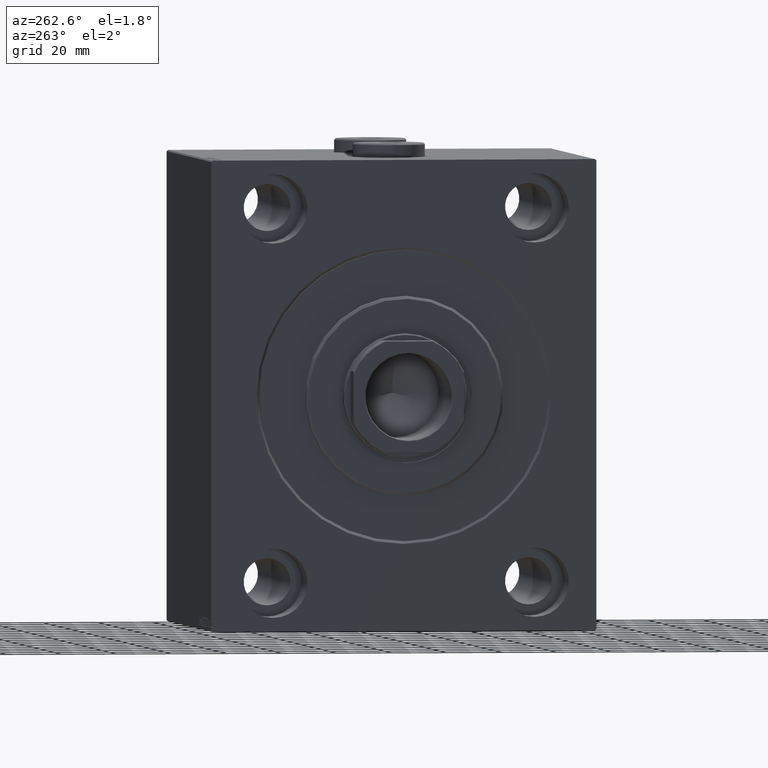
[diagram: clean part render]
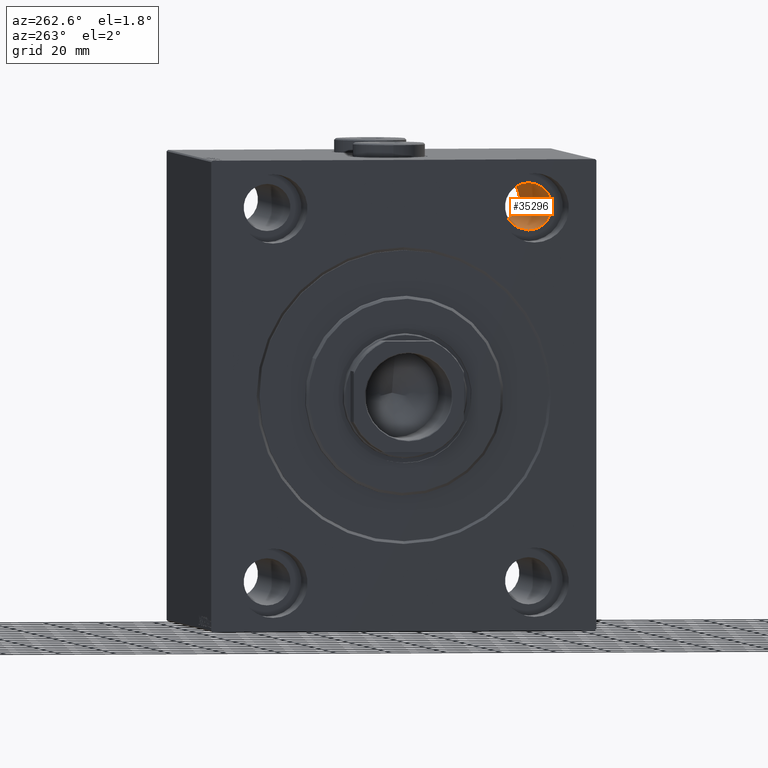
[diagram: same view with one face highlighted and labeled with its STEP entity id]
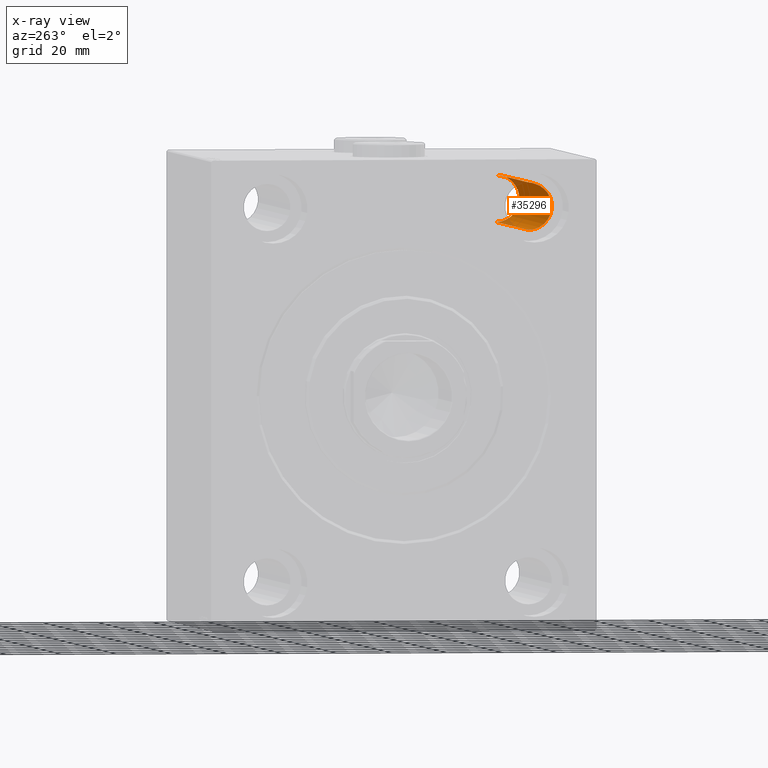
[diagram: x-ray of the same camera — body ghosted, the highlighted face saturated]
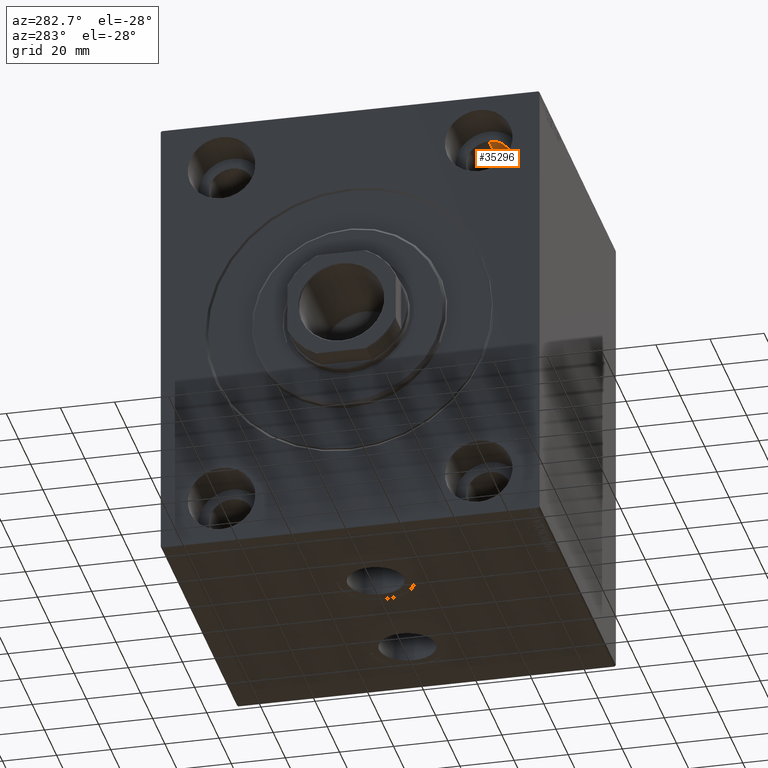
[diagram: same view with one face highlighted and labeled with its STEP entity id]
A machine part, auxiliary view. The second image highlights one B-rep face of the part: STEP entity #35296.
The next image is the same camera in x-ray: the body ghosted, the highlighted face saturated — about 9% of this face is hidden behind the body in this view.
A second angle (auxiliary view) of the same face is appended — the face is thin or edge-on in the first view.
In plain terms, the highlighted cylindrical surface (edge-blend (fillet) strip) has radius 8.5 mm, axis along (-1, -0, -0).
Its self-contained STEP definition (entity closure, byte-faithful):
#1941 = VERTEX_POINT ( 'NONE', #14081 ) ;
#2252 = DIRECTION ( 'NONE',  ( 0.000000000000000000, 0.000000000000000000, 1.000000000000000000 ) ) ;
#2478 = CARTESIAN_POINT ( 'NONE',  ( 17.00000000000000000, -47.49999999999997868, 67.50000000000000000 ) ) ;
#2604 = AXIS2_PLACEMENT_3D ( 'NONE', #22381, #39937, #25796 ) ;
#4208 = CARTESIAN_POINT ( 'NONE',  ( 17.00000000000000000, -47.49999999999997868, 76.00000000000001421 ) ) ;
#5898 = CYLINDRICAL_SURFACE ( 'NONE', #26695, 8.500000000000007105 ) ;
#7756 = ORIENTED_EDGE ( 'NONE', *, *, #33323, .F. ) ;
#8505 = DIRECTION ( 'NONE',  ( -1.000000000000000000, -0.000000000000000000, -0.000000000000000000 ) ) ;
#9868 = VECTOR ( 'NONE', #29990, 1000.000000000000000 ) ;
#9895 = CIRCLE ( 'NONE', #2604, 8.500000000000007105 ) ;
#10384 = VERTEX_POINT ( 'NONE', #14712 ) ;
#10647 = CIRCLE ( 'NONE', #36139, 8.500000000000007105 ) ;
#14081 = CARTESIAN_POINT ( 'NONE',  ( 108.0000000000000000, -47.49999999999997868, 76.00000000000001421 ) ) ;
#14712 = CARTESIAN_POINT ( 'NONE',  ( 17.00000000000000000, -47.49999999999997868, 59.00000000000000000 ) ) ;
#16081 = CARTESIAN_POINT ( 'NONE',  ( 125.0000000000000000, -47.49999999999997868, 76.00000000000001421 ) ) ;
#16175 = FACE_OUTER_BOUND ( 'NONE', #34391, .T. ) ;
#19841 = DIRECTION ( 'NONE',  ( -1.000000000000000000, -0.000000000000000000, -0.000000000000000000 ) ) ;
#20318 = EDGE_CURVE ( 'NONE', #36987, #10384, #32924, .T. ) ;
#21127 = ORIENTED_EDGE ( 'NONE', *, *, #34646, .T. ) ;
#22381 = CARTESIAN_POINT ( 'NONE',  ( 108.0000000000000000, -47.49999999999997868, 67.50000000000000000 ) ) ;
#23015 = CARTESIAN_POINT ( 'NONE',  ( 125.0000000000000000, -47.49999999999997868, 67.50000000000000000 ) ) ;
#25796 = DIRECTION ( 'NONE',  ( 0.000000000000000000, 0.000000000000000000, -1.000000000000000000 ) ) ;
#26117 = LINE ( 'NONE', #16081, #9868 ) ;
#26695 = AXIS2_PLACEMENT_3D ( 'NONE', #23015, #19841, #30092 ) ;
#26972 = ORIENTED_EDGE ( 'NONE', *, *, #31536, .F. ) ;
#29990 = DIRECTION ( 'NONE',  ( -1.000000000000000000, -0.000000000000000000, -0.000000000000000000 ) ) ;
#30092 = DIRECTION ( 'NONE',  ( 0.000000000000000000, 0.000000000000000000, 1.000000000000000000 ) ) ;
#31536 = EDGE_CURVE ( 'NONE', #1941, #35856, #26117, .T. ) ;
#32924 = LINE ( 'NONE', #44100, #35895 ) ;
#33323 = EDGE_CURVE ( 'NONE', #36987, #1941, #9895, .T. ) ;
#34391 = EDGE_LOOP ( 'NONE', ( #7756, #37386, #21127, #26972 ) ) ;
#34646 = EDGE_CURVE ( 'NONE', #10384, #35856, #10647, .T. ) ;
#35296 = ADVANCED_FACE ( 'NONE', ( #16175 ), #5898, .F. ) ;
#35856 = VERTEX_POINT ( 'NONE', #4208 ) ;
#35895 = VECTOR ( 'NONE', #8505, 1000.000000000000000 ) ;
#36139 = AXIS2_PLACEMENT_3D ( 'NONE', #2478, #43995, #2252 ) ;
#36987 = VERTEX_POINT ( 'NONE', #40943 ) ;
#37386 = ORIENTED_EDGE ( 'NONE', *, *, #20318, .T. ) ;
#39937 = DIRECTION ( 'NONE',  ( -1.000000000000000000, -0.000000000000000000, -0.000000000000000000 ) ) ;
#40943 = CARTESIAN_POINT ( 'NONE',  ( 108.0000000000000000, -47.49999999999997868, 59.00000000000000000 ) ) ;
#43995 = DIRECTION ( 'NONE',  ( -1.000000000000000000, 0.000000000000000000, 0.000000000000000000 ) ) ;
#44100 = CARTESIAN_POINT ( 'NONE',  ( 125.0000000000000000, -47.49999999999997868, 59.00000000000000000 ) ) ;